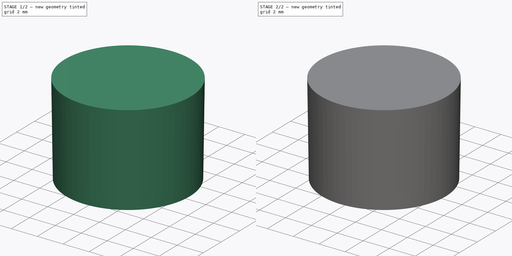
[diagram: build sequence overview — one tinted view per stage of 2, left to right]
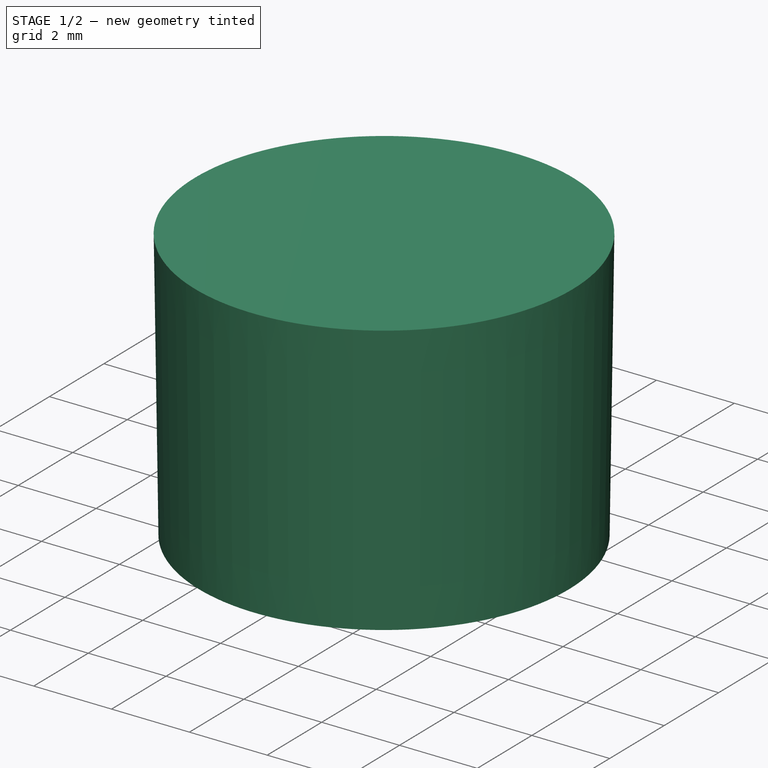
[diagram: stage 1 of 2 — iso view after this stage's code; geometry added in this stage tinted green]
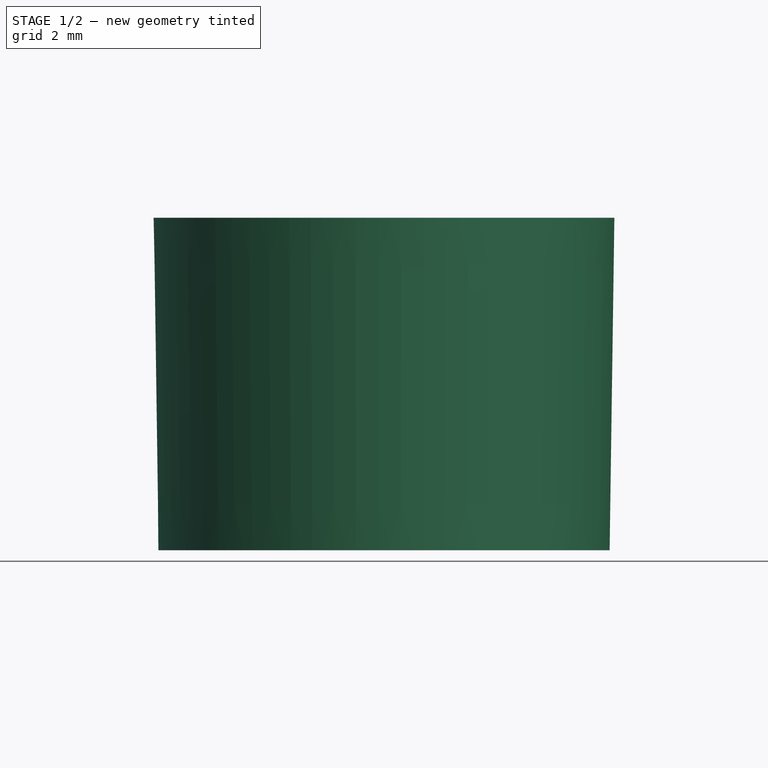
[diagram: stage 1 of 2 — front view after this stage's code; geometry added in this stage tinted green]
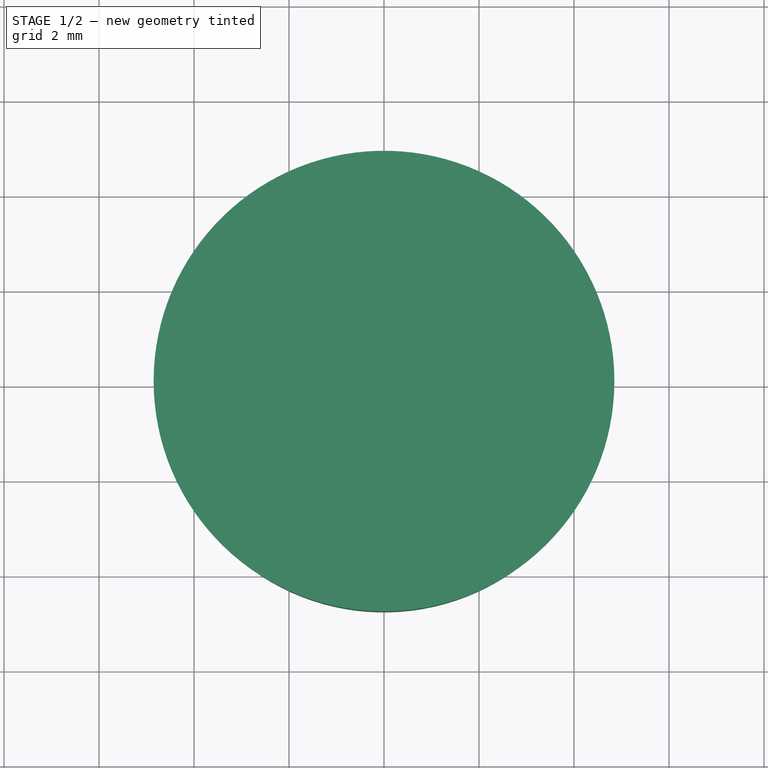
[diagram: stage 1 of 2 — top view after this stage's code; geometry added in this stage tinted green]
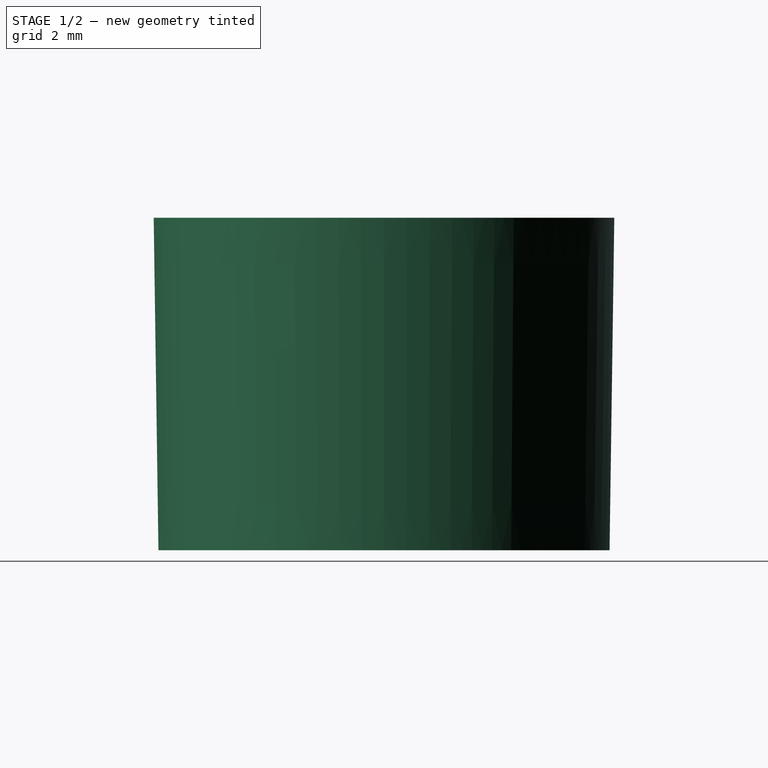
[diagram: stage 1 of 2 — right view after this stage's code; geometry added in this stage tinted green]
FCSTD DOCUMENT  (FreeCAD 0.21R33668 +26 (Git))
Label: PLASTIC-CAP-BUTTON
License: All rights reserved
LicenseURL: https://en.wikipedia.org/wiki/All_rights_reserved
objects: Sketcher::SketchObject×3, PartDesign::Pad×2, PartDesign::Revolution×1, PartDesign::Body×1
note: 10 computed .brp shape members not serialized (recipe doc carries the construction recipe); baked Part::Feature solids carry a one-line shape summary decoded from their .brp

FEATURE [Sketcher::SketchObject] Sketch
  FullyConstrained = true
  MapMode = 5
  Placement = pos=(0,0,0) rot=(1,0,0;1.5708rad)
  Support = -> [XZ_Plane]
  sketch-geometry (6):
    g0: LineSegment StartX=0 StartY=1 StartZ=0 EndX=4.85 EndY=1 EndZ=0
    g1: LineSegment StartX=4.85 StartY=1 StartZ=0 EndX=4.75 EndY=-6 EndZ=0
    g2: LineSegment StartX=0 StartY=1 StartZ=0 EndX=0 EndY=0 EndZ=0
    g3: LineSegment StartX=0 StartY=0 StartZ=0 EndX=3.83571 EndY=0 EndZ=0
    g4: LineSegment StartX=3.83571 StartY=0 StartZ=0 EndX=3.75 EndY=-6 EndZ=0
    g5: LineSegment StartX=4.75 StartY=-6 StartZ=0 EndX=3.75 EndY=-6 EndZ=0
  constraints (17):
    c: Coincident(g1,g0)
    c: Coincident(g3,g2)
    c: Horizontal(g3)
    c: Coincident(g4,g3)
    c: Coincident(g5,g1)
    c: Coincident(g5,g4)
    c: Horizontal(g5)
    c: DistanceX(g0,g0) = 4.85
    c: DistanceX(g0,g1) = 4.75
    c: DistanceY(g2,g2) = 1
    c: DistanceX(g5,g5) = 1
    c: Parallel(g4,g1)
    c: DistanceY(g1,g0) = 7
    c: Vertical(g2)
    c: Horizontal(g0)
    c: Coincident(g2,g-1)
    c: Coincident(g0,g2)
FEATURE [PartDesign::Revolution] Revolution
  Angle = 360
  Axis = (0,2e-16,1)
  Base = (0,0,0)
  Placement = pos=(0,0,0) rot=(1,0,0;1.5708rad)
  Profile = -> Sketch
  ReferenceAxis = -> Sketch [V_Axis]
  Reversed = true
FEATURE [Sketcher::SketchObject] Sketch001
  ExternalGeometry = -> [Revolution]
  FullyConstrained = true
  MapMode = 5
  Support = -> [XY_Plane]
  sketch-geometry (30):
    g0: LineSegment StartX=-1 StartY=-1.9 StartZ=0 EndX=-1 EndY=-2.9 EndZ=0
    g1: LineSegment StartX=-1 StartY=-2.9 StartZ=0 EndX=-0.5 EndY=-2.9 EndZ=0
    g2: LineSegment StartX=1 StartY=-2.9 StartZ=0 EndX=1 EndY=-1.9 EndZ=0
    g3: LineSegment StartX=1 StartY=-1.9 StartZ=0 EndX=-1 EndY=-1.9 EndZ=0
    g4: GeomPoint X=0 Y=-2.4 Z=0
    g5: LineSegment StartX=-1 StartY=2.9 StartZ=0 EndX=-1 EndY=1.9 EndZ=0
    g6: LineSegment StartX=-1 StartY=1.9 StartZ=0 EndX=1 EndY=1.9 EndZ=0
    g7: LineSegment StartX=1 StartY=1.9 StartZ=0 EndX=1 EndY=2.9 EndZ=0
    g8: LineSegment StartX=1 StartY=2.9 StartZ=0 EndX=0.5 EndY=2.9 EndZ=0
    g9: GeomPoint X=-1.279e-13 Y=2.4 Z=0
    g10: LineSegment StartX=1.9 StartY=1.9 StartZ=0 EndX=1.9 EndY=-1.9 EndZ=0
    g11: LineSegment StartX=1.9 StartY=-1.9 StartZ=0 EndX=2.9 EndY=-1.9 EndZ=0
    g12: LineSegment StartX=2.9 StartY=-1.9 StartZ=0 EndX=2.9 EndY=1.9 EndZ=0
    g13: LineSegment StartX=2.9 StartY=1.9 StartZ=0 EndX=1.9 EndY=1.9 EndZ=0
    g14: GeomPoint X=2.4 Y=0 Z=0
    g15: LineSegment StartX=-2.9 StartY=1.9 StartZ=0 EndX=-2.9 EndY=-1.9 EndZ=0
    g16: LineSegment StartX=-2.9 StartY=-1.9 StartZ=0 EndX=-1.9 EndY=-1.9 EndZ=0
    g17: LineSegment StartX=-1.9 StartY=-1.9 StartZ=0 EndX=-1.9 EndY=1.9 EndZ=0
    g18: LineSegment StartX=-1.9 StartY=1.9 StartZ=0 EndX=-2.9 EndY=1.9 EndZ=0
    g19: GeomPoint X=-2.4 Y=1.43575e-11 Z=0
    g20: LineSegment StartX=0.5 StartY=-2.9 StartZ=0 EndX=0.5 EndY=-4.35 EndZ=0
    g21: LineSegment StartX=0.5 StartY=-4.35 StartZ=0 EndX=-0.5 EndY=-4.35 EndZ=0
    g22: LineSegment StartX=-0.5 StartY=-4.35 StartZ=0 EndX=-0.5 EndY=-2.9 EndZ=0
    g23: LineSegment StartX=0.5 StartY=2.9 StartZ=0 EndX=0.5 EndY=4.35 EndZ=0
    g24: LineSegment StartX=0.5 StartY=4.35 StartZ=0 EndX=-0.5 EndY=4.35 EndZ=0
    g25: LineSegment StartX=-0.5 StartY=4.35 StartZ=0 EndX=-0.5 EndY=2.9 EndZ=0
    g26: GeomPoint X=0 Y=2.9 Z=0
    g27: GeomPoint X=0 Y=-2.9 Z=0
    g28: LineSegment StartX=0.5 StartY=-2.9 StartZ=0 EndX=1 EndY=-2.9 EndZ=0
    g29: LineSegment StartX=-0.5 StartY=2.9 StartZ=0 EndX=-1 EndY=2.9 EndZ=0
  constraints (76):
    c: Coincident(g0,g1)
    c: Coincident(g28,g2)
    c: Coincident(g2,g3)
    c: Coincident(g3,g0)
    c: Horizontal(g1)
    c: Horizontal(g3)
    c: Vertical(g0)
    c: Vertical(g2)
    c: Symmetric(g28,g0,g4)
    c: PointOnObject(g4,g-2)
    c: Coincident(g5,g6)
    c: Coincident(g6,g7)
    c: Coincident(g7,g8)
    c: Coincident(g29,g5)
    c: Horizontal(g6)
    c: Horizontal(g8)
    c: Vertical(g5)
    c: Vertical(g7)
    c: Symmetric(g6,g5,g9)
    c: Coincident(g10,g11)
    c: Coincident(g11,g12)
    c: Coincident(g12,g13)
    c: Coincident(g13,g10)
    c: Horizontal(g11)
    c: Horizontal(g13)
    c: Vertical(g10)
    c: Vertical(g12)
    c: Symmetric(g11,g10,g14)
    c: PointOnObject(g14,g-1)
    c: Coincident(g15,g16)
    c: Coincident(g16,g17)
    c: Coincident(g17,g18)
    c: Coincident(g18,g15)
    c: Horizontal(g16)
    c: Horizontal(g18)
    c: Vertical(g15)
    c: Vertical(g17)
    c: Symmetric(g16,g15,g19)
    c: Equal(g3,g6)
    c: Equal(g10,g17)
    c: Equal(g2,g7)
    c: Equal(g11,g16)
    c: DistanceX(g17,g10) = 3.8
    c: DistanceX(g18,g18) = 1
    c: Symmetric(g14,g19,g-3)
    c: Symmetric(g9,g4,g-3)
    c: DistanceX(g29,g8) = 2
    c: Horizontal(g2,g10)
    c: DistanceY(g0,g0) = 1
    c: Vertical(g20)
    c: Coincident(g21,g20)
    c: Horizontal(g21)
    c: Coincident(g22,g21)
    c: Vertical(g22)
    c: Vertical(g23)
    c: Coincident(g24,g23)
    c: Horizontal(g24)
    c: Coincident(g25,g24)
    c: Vertical(g25)
    c: PointOnObject(g26,g-2)
    c: Symmetric(g25,g23,g26)
    c: PointOnObject(g27,g-2)
    c: Symmetric(g20,g22,g27)
    c: Coincident(g1,g22)
    c: Coincident(g28,g20)
    c: Coincident(g8,g23)
    c: Coincident(g29,g25)
    c: DistanceY(g12,g12) = 3.8
    c: Horizontal(g20,g1)
    c: Horizontal(g28)
    c: Horizontal(g29)
    c: Equal(g22,g25)
    c: DistanceY(g20,g20) = 1.45
    c: Equal(g21,g24)
    c: DistanceX(g21,g21) = 1
    c: Horizontal(g8,g25)
FEATURE [PartDesign::Pad] Pad
  BaseFeature = -> Revolution
  Direction = (0,0,1)
  Length = 10
  Length2 = 10
  Placement = pos=(0,0,0) rot=(1,0,0;1.5708rad)
  Profile = -> Sketch001
  ReferenceAxis = -> Sketch001 [N_Axis]
  Refine = true
  Type = 3
  UpToFace = -> Revolution [Face3]
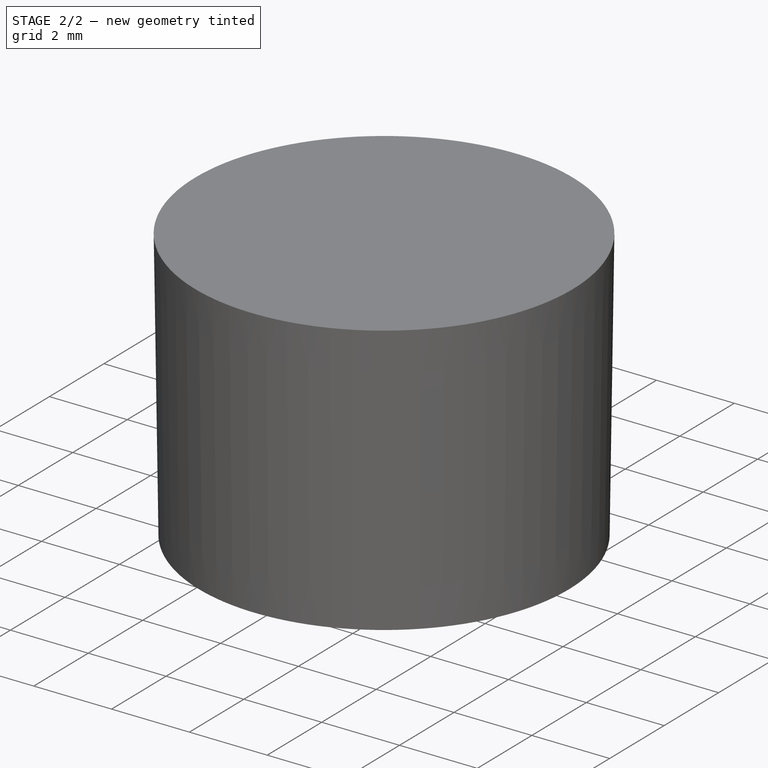
[diagram: stage 2 of 2 — iso view after this stage's code; geometry added in this stage tinted green]
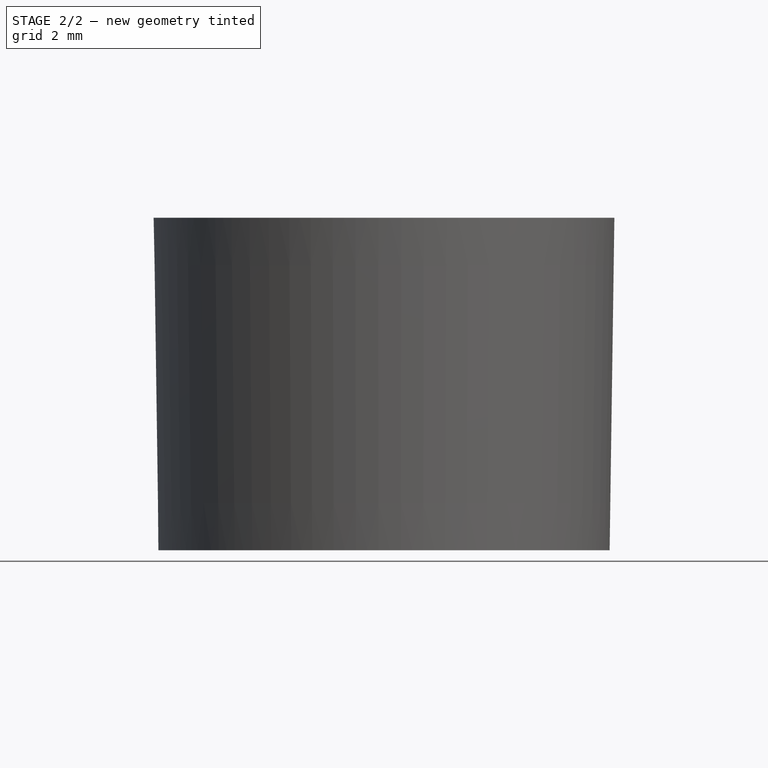
[diagram: stage 2 of 2 — front view after this stage's code; geometry added in this stage tinted green]
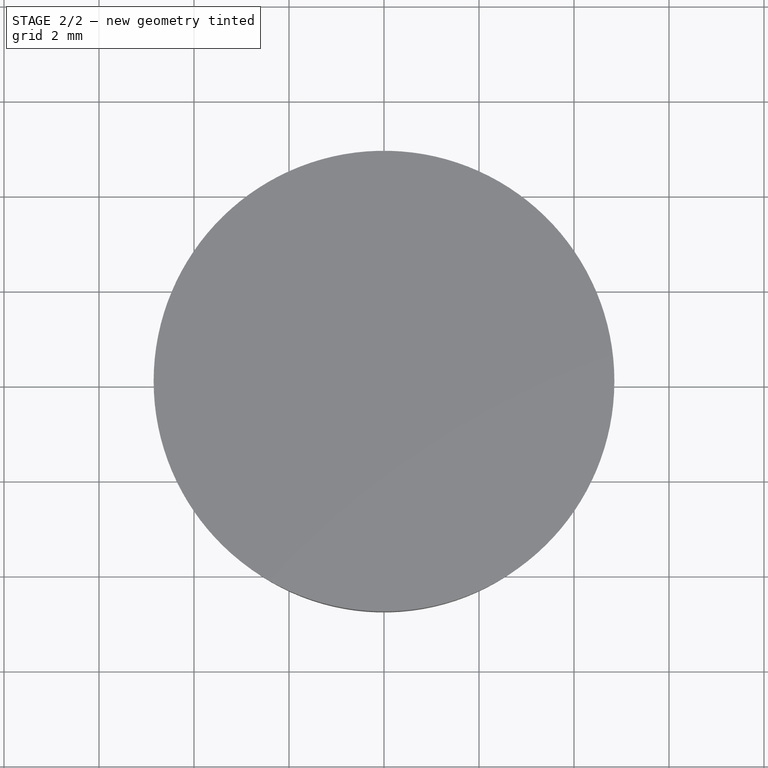
[diagram: stage 2 of 2 — top view after this stage's code; geometry added in this stage tinted green]
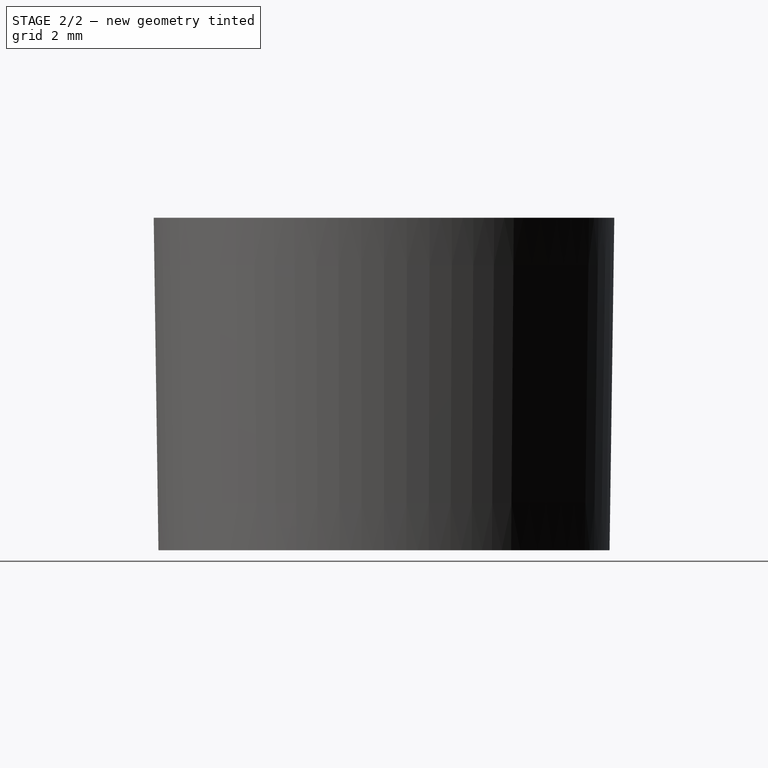
[diagram: stage 2 of 2 — right view after this stage's code; geometry added in this stage tinted green]
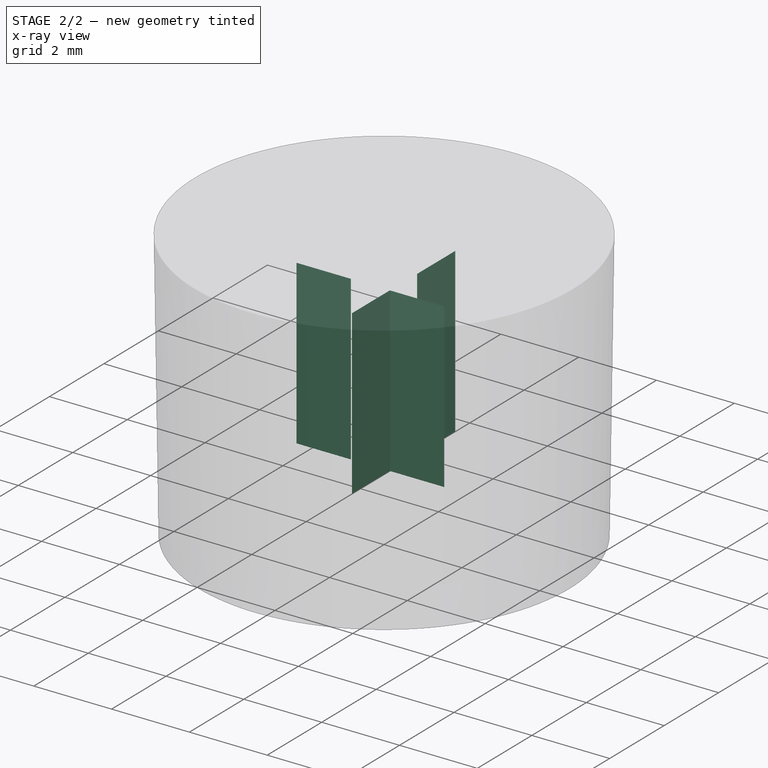
[diagram: stage 2 of 2 — x-ray composite at the iso view; earlier geometry ghosted, this stage's added geometry solid]
FEATURE [Sketcher::SketchObject] Sketch002
  FullyConstrained = true
  MapMode = 5
  Support = -> [XY_Plane]
  sketch-geometry (14):
    g0: LineSegment StartX=-0.5 StartY=2.5 StartZ=0 EndX=-0.5 EndY=0.5 EndZ=0
    g1: LineSegment StartX=-0.5 StartY=-2.5 StartZ=0 EndX=0.5 EndY=-2.5 EndZ=0
    g2: LineSegment StartX=0.5 StartY=-2.5 StartZ=0 EndX=0.5 EndY=-0.5 EndZ=0
    g3: LineSegment StartX=0.5 StartY=2.5 StartZ=0 EndX=-0.5 EndY=2.5 EndZ=0
    g4: GeomPoint X=0 Y=0 Z=0
    g5: LineSegment StartX=-2.5 StartY=0.5 StartZ=0 EndX=-2.5 EndY=-0.5 EndZ=0
    g6: LineSegment StartX=-2.5 StartY=-0.5 StartZ=0 EndX=-0.5 EndY=-0.5 EndZ=0
    g7: LineSegment StartX=2.5 StartY=-0.5 StartZ=0 EndX=2.5 EndY=0.5 EndZ=0
    g8: LineSegment StartX=2.5 StartY=0.5 StartZ=0 EndX=0.5 EndY=0.5 EndZ=0
    g9: GeomPoint X=0 Y=0 Z=0
    g10: LineSegment StartX=-0.5 StartY=0.5 StartZ=0 EndX=-2.5 EndY=0.5 EndZ=0
    g11: LineSegment StartX=0.5 StartY=0.5 StartZ=0 EndX=0.5 EndY=2.5 EndZ=0
    g12: LineSegment StartX=0.5 StartY=-0.5 StartZ=0 EndX=2.5 EndY=-0.5 EndZ=0
    g13: LineSegment StartX=-0.5 StartY=-0.5 StartZ=0 EndX=-0.5 EndY=-2.5 EndZ=0
  constraints (36):
    c: Coincident(g13,g1)
    c: Coincident(g1,g2)
    c: Coincident(g11,g3)
    c: Coincident(g3,g0)
    c: Horizontal(g1)
    c: Horizontal(g3)
    c: Vertical(g0)
    c: Vertical(g2)
    c: Symmetric(g1,g0,g4)
    c: Coincident(g4,g-1)
    c: Coincident(g5,g6)
    c: Coincident(g12,g7)
    c: Coincident(g7,g8)
    c: Coincident(g10,g5)
    c: Horizontal(g6)
    c: Horizontal(g8)
    c: Vertical(g5)
    c: Vertical(g7)
    c: Symmetric(g12,g5,g9)
    c: Coincident(g9,g4)
    c: DistanceX(g1,g1) = 1
    c: Equal(g1,g7)
    c: DistanceY(g13,g0) = 5
    c: Coincident(g11,g8)
    c: Coincident(g12,g2)
    c: Coincident(g0,g10)
    c: Coincident(g13,g6)
    c: Vertical(g0,g6)
    c: Horizontal(g8,g0)
    c: Horizontal(g2,g6)
    c: Vertical(g8,g2)
    c: Vertical(g11)
    c: Vertical(g13)
    c: Horizontal(g10)
    c: Horizontal(g12)
    c: DistanceX(g5,g7) = 5
FEATURE [PartDesign::Pad] Pad001
  BaseFeature = -> Pad
  Direction = (0,0,1)
  Length = 4.2
  Length2 = 10
  Placement = pos=(0,0,0) rot=(1,0,0;1.5708rad)
  Profile = -> Sketch002
  ReferenceAxis = -> Sketch002 [N_Axis]
  Reversed = true
  Type = 0
FEATURE [PartDesign::Body] Body  label="PLASTIC-CAP-BUTTON"
  Group = -> [Sketch,Revolution,Sketch001,Pad,Sketch002,Pad001]
  Origin = -> Origin
  Tip = -> Pad001
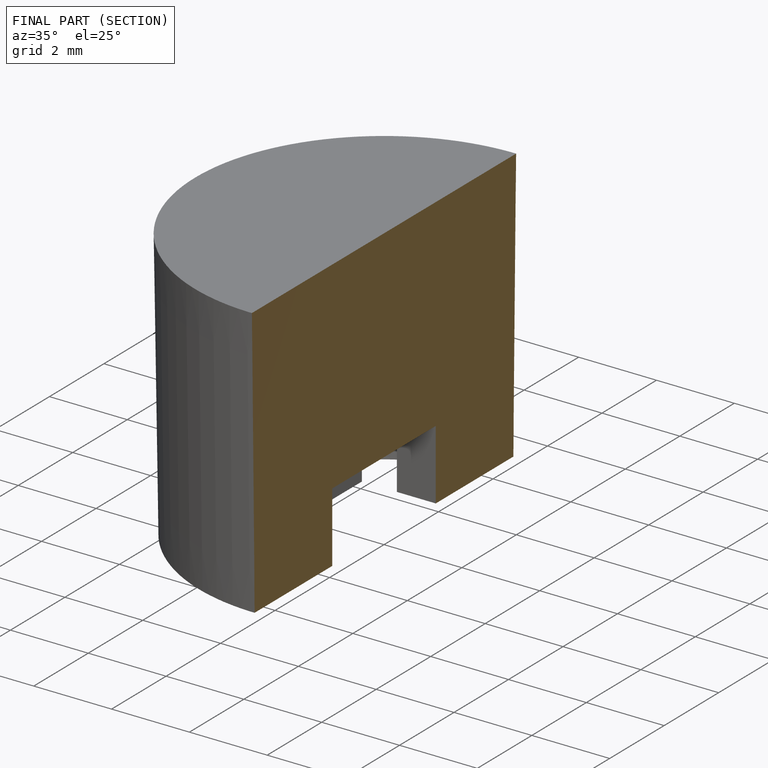
[diagram: finished part — half-section view (interior)]
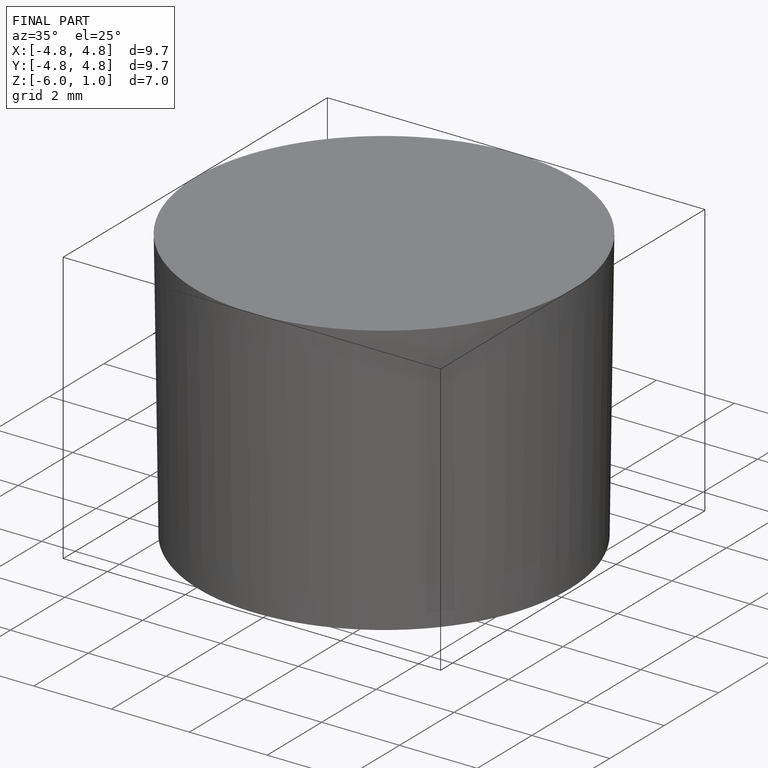
[diagram: finished part — iso view with bounding-box wireframe]
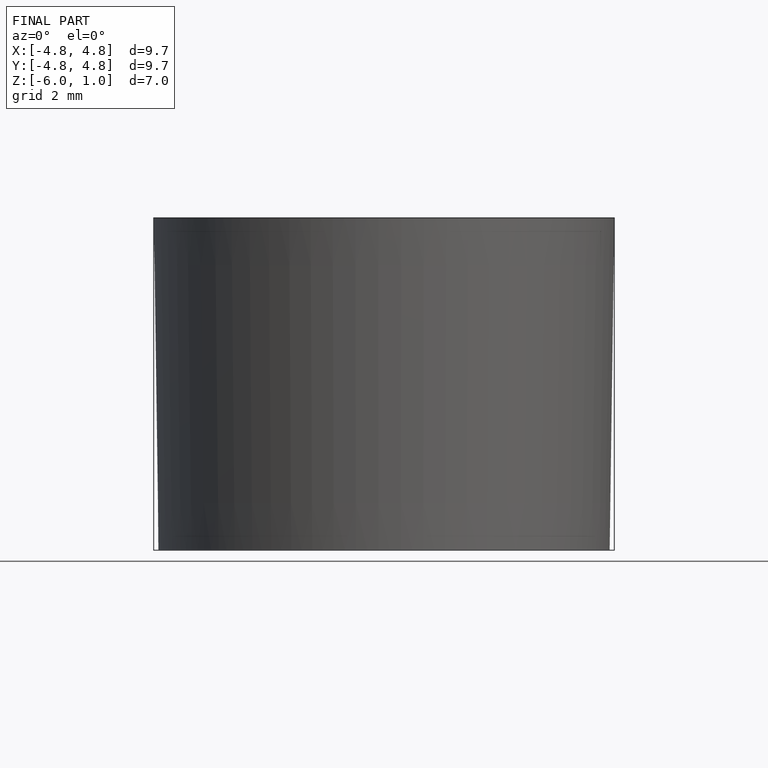
[diagram: finished part — front view with bounding-box wireframe]
